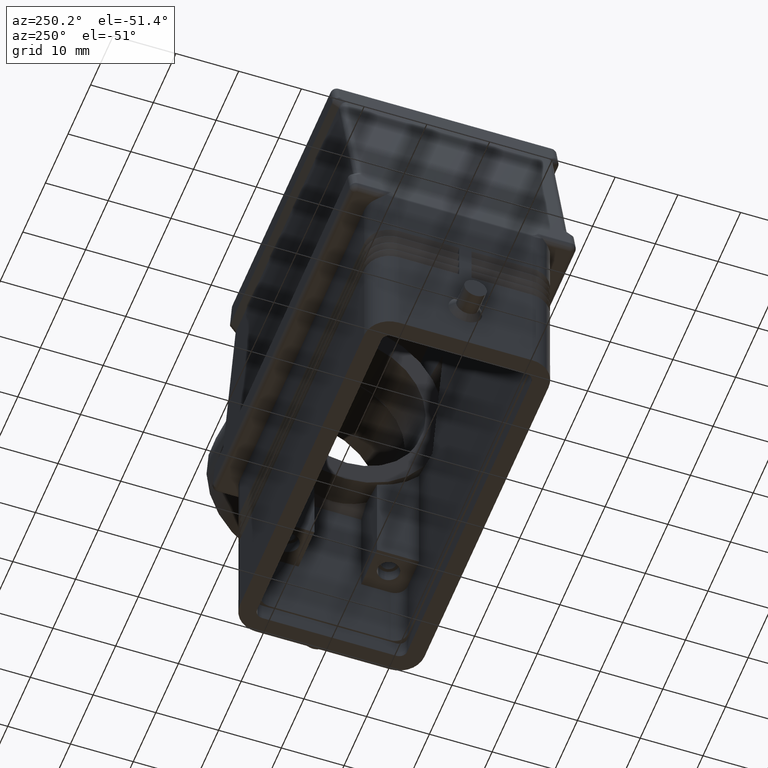
[diagram: clean part render]
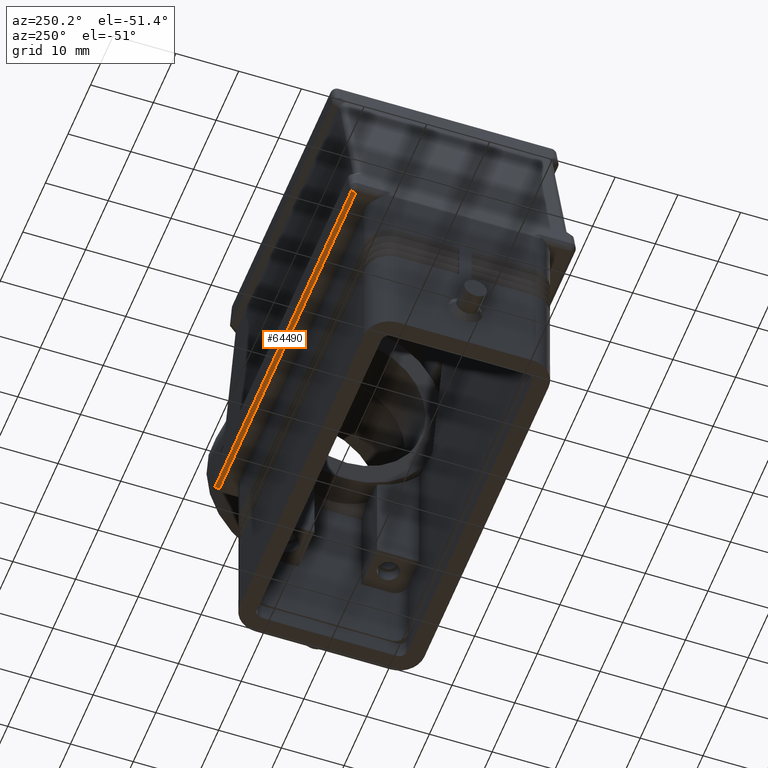
[diagram: same view with one face highlighted and labeled with its STEP entity id]
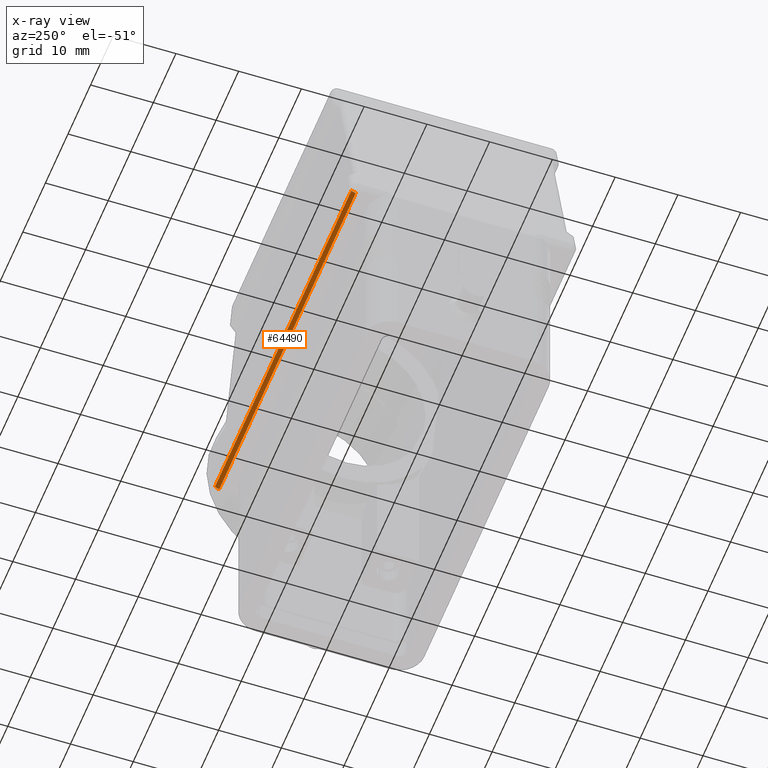
[diagram: x-ray of the same camera — body ghosted, the highlighted face saturated]
A machine part, auxiliary view. The second image highlights one B-rep face of the part: STEP entity #64490.
The next image is the same camera in x-ray: the body ghosted, the highlighted face saturated — about 0% of this face is hidden behind the body in this view.
In plain terms, the highlighted cylindrical surface (edge-blend (fillet) strip) has radius 1 mm, axis along (1, 0, 0).
Its self-contained STEP definition (entity closure, byte-faithful):
#5680=CARTESIAN_POINT('',(30.2056639718257,17.7071067811865,
30.2928932188134));
#5690=VERTEX_POINT('',#5680);
#5870=CARTESIAN_POINT('',(-30.2056639718257,17.7071067811866,
30.2928932188135));
#5880=VERTEX_POINT('',#5870);
#5910=CARTESIAN_POINT('',(-30.2056639718257,17.7071067811866,
30.2928932188135));
#5920=DIRECTION('',(1.,0.,0.));
#5930=VECTOR('',#5920,60.4113279436514);
#5940=LINE('',#5910,#5930);
#5950=EDGE_CURVE('',#5880,#5690,#5940,.T.);
#55970=CARTESIAN_POINT('',(-30.2056639718257,17.,31.));
#55980=DIRECTION('',(-1.,0.,0.));
#55990=DIRECTION('',(0.,0.707106781186549,-0.707106781186546));
#56000=AXIS2_PLACEMENT_3D('',#55970,#55980,#55990);
#56010=CIRCLE('',#56000,1.);
#56020=CARTESIAN_POINT('',(-30.2056639718257,17.,30.));
#56030=VERTEX_POINT('',#56020);
#56040=EDGE_CURVE('',#5880,#56030,#56010,.T.);
#56330=CARTESIAN_POINT('',(30.2056639718257,17.,30.));
#56340=VERTEX_POINT('',#56330);
#56470=CARTESIAN_POINT('',(30.2056639718257,17.,31.));
#56480=DIRECTION('',(1.,-8.881784E-15,8.881784E-15));
#56490=DIRECTION('',(1.25607393908684E-14,0.707106781186549,
-0.707106781186546));
#56500=AXIS2_PLACEMENT_3D('',#56470,#56480,#56490);
#56510=CIRCLE('',#56500,1.);
#56520=EDGE_CURVE('',#56340,#5690,#56510,.T.);
#64330=CARTESIAN_POINT('',(-15.75,17.,31.));
#64340=DIRECTION('',(1.,0.,0.));
#64350=DIRECTION('',(0.,0.707106781186549,-0.707106781186546));
#64360=AXIS2_PLACEMENT_3D('',#64330,#64340,#64350);
#64370=CYLINDRICAL_SURFACE('',#64360,1.);
#64380=ORIENTED_EDGE('',*,*,#56040,.F.);
#64390=CARTESIAN_POINT('',(30.2056639718257,17.,30.));
#64400=DIRECTION('',(-1.,0.,0.));
#64410=VECTOR('',#64400,60.4113279436514);
#64420=LINE('',#64390,#64410);
#64430=EDGE_CURVE('',#56340,#56030,#64420,.T.);
#64440=ORIENTED_EDGE('',*,*,#64430,.T.);
#64450=ORIENTED_EDGE('',*,*,#56520,.F.);
#64460=ORIENTED_EDGE('',*,*,#5950,.T.);
#64470=EDGE_LOOP('',(#64460,#64450,#64440,#64380));
#64480=FACE_OUTER_BOUND('',#64470,.T.);
#64490=ADVANCED_FACE('',(#64480),#64370,.T.);